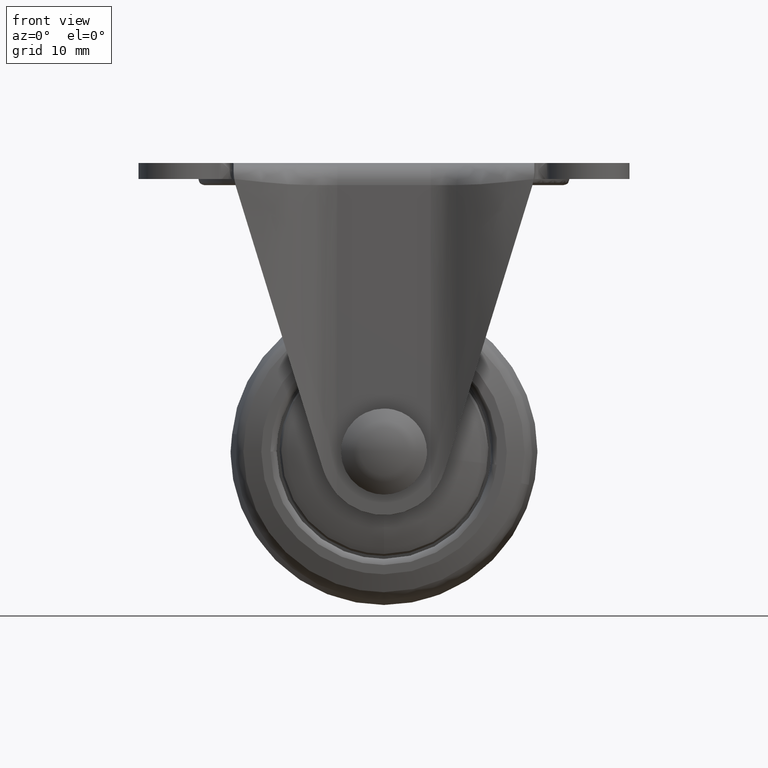
[diagram: clean part render]
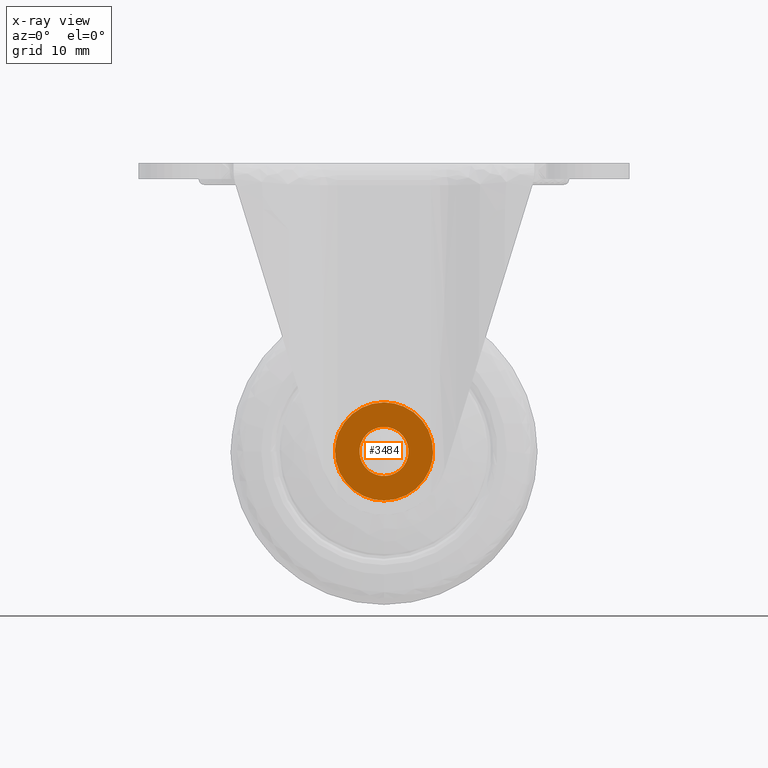
[diagram: x-ray — body ghosted, one internal face saturated and labeled with its STEP entity id]
A machine part, front view, then the same camera in x-ray: the body is ghosted and one INTERNAL B-rep face — a face not visible from any outside direction — is saturated and labeled: STEP entity #3484.
In plain terms, the highlighted face is a freeform B-spline surface patch.
Its self-contained STEP definition (entity closure, byte-faithful):
#1264=CARTESIAN_POINT('',(-3.054222664501923,-15.500000000000000,-49.582968444618473));
#1265=VERTEX_POINT('',#1264);
#1271=CARTESIAN_POINT('',(0.0,-15.500000000000000,-50.999999999999801));
#1272=VERTEX_POINT('',#1271);
#1273=CARTESIAN_POINT('',(-3.054222664501923,-15.500000000000000,-49.582968444618473));
#1274=CARTESIAN_POINT('',(-2.808872730657842,-15.499999999999970,-49.873308524333453));
#1275=CARTESIAN_POINT('',(-2.384946206780501,-15.500000000000060,-50.249531823307947));
#1276=CARTESIAN_POINT('',(-1.674764381499701,-15.499999999999940,-50.652202042374853));
#1277=CARTESIAN_POINT('',(-0.941151759163506,-15.499999999999931,-50.922475361348049));
#1278=CARTESIAN_POINT('',(-0.343911854788892,-15.500000000000099,-51.000105038213533));
#1279=CARTESIAN_POINT('',(0.0,-15.500000000000000,-50.999999999999801));
#1280=B_SPLINE_CURVE_WITH_KNOTS('',3,(#1273,#1274,#1275,#1276,#1277,#1278,#1279),.UNSPECIFIED.,.F.,.U.,(4,1,1,1,4),(0.000000059400376,1.140316804529790,1.683345092141266,2.443518461234145,3.475233123309955),.UNSPECIFIED.);
#1281=EDGE_CURVE('',#1265,#1272,#1280,.T.);
#1283=CARTESIAN_POINT('',(3.999999999999667,-15.500000000000000,-46.999998950303286));
#1284=VERTEX_POINT('',#1283);
#1285=CARTESIAN_POINT('',(0.0,-15.500000000000000,-50.999999999999801));
#1286=CARTESIAN_POINT('',(0.392721412746728,-15.500000000000011,-51.000185626690779));
#1287=CARTESIAN_POINT('',(1.047109512581690,-15.499999999999989,-50.902793225111743));
#1288=CARTESIAN_POINT('',(1.867365633119157,-15.500000000000041,-50.563005816825651));
#1289=CARTESIAN_POINT('',(2.500577606205961,-15.499999999999970,-50.151007793172333));
#1290=CARTESIAN_POINT('',(3.143763246352294,-15.500000000000011,-49.538935033749773));
#1291=CARTESIAN_POINT('',(3.656962279054536,-15.500000000000000,-48.728417136200328));
#1292=CARTESIAN_POINT('',(3.945198167623783,-15.500000000000110,-47.818105685787998));
#1293=CARTESIAN_POINT('',(4.000029753250794,-15.499999999999810,-47.261799231167018));
#1294=CARTESIAN_POINT('',(3.999999999999667,-15.500000000000000,-46.999998950303286));
#1295=B_SPLINE_CURVE_WITH_KNOTS('',3,(#1285,#1286,#1287,#1288,#1289,#1290,#1291,#1292,#1293,#1294),.UNSPECIFIED.,.F.,.U.,(4,1,1,1,1,1,1,4),(0.000000077338700,1.178124485163649,1.963550642275110,2.650800025444271,3.436193255035343,4.614330261092524,5.497934261530642,6.283343568979000),.UNSPECIFIED.);
#1296=EDGE_CURVE('',#1272,#1284,#1295,.T.);
#1298=CARTESIAN_POINT('',(0.0,-15.500000000000000,-43.000000000000199));
#1299=VERTEX_POINT('',#1298);
#1300=CARTESIAN_POINT('',(3.999999999999667,-15.500000000000000,-46.999998950303286));
#1301=CARTESIAN_POINT('',(4.000036588051216,-15.500000000000000,-46.672761661433853));
#1302=CARTESIAN_POINT('',(3.907297759796412,-15.500000000000011,-45.920023266574987));
#1303=CARTESIAN_POINT('',(3.502522396443434,-15.500000000000000,-44.975755563018438));
#1304=CARTESIAN_POINT('',(2.875198745765913,-15.500000000000020,-44.172205750381778));
#1305=CARTESIAN_POINT('',(2.085192558420630,-15.500000000000011,-43.523564234161803));
#1306=CARTESIAN_POINT('',(1.079959608904789,-15.500000000000020,-43.092719026859889));
#1307=CARTESIAN_POINT('',(0.327238564860059,-15.499999999999959,-42.999958412808120));
#1308=CARTESIAN_POINT('',(0.0,-15.500000000000000,-43.000000000000199));
#1309=B_SPLINE_CURVE_WITH_KNOTS('',3,(#1300,#1301,#1302,#1303,#1304,#1305,#1306,#1307,#1308),.UNSPECIFIED.,.F.,.U.,(4,1,1,1,1,1,4),(0.000000078774876,0.981769314587543,2.258086981098695,3.043499914183089,4.025259061888916,5.301575811805244,6.283342385696691),.UNSPECIFIED.);
#1310=EDGE_CURVE('',#1284,#1299,#1309,.T.);
#1312=CARTESIAN_POINT('',(-2.753418017730842,-15.500000000000000,-44.098502606736083));
#1313=VERTEX_POINT('',#1312);
#1314=CARTESIAN_POINT('',(0.0,-15.500000000000000,-43.000000000000199));
#1315=CARTESIAN_POINT('',(-0.474586353921024,-15.499999999999989,-42.999593902276352));
#1316=CARTESIAN_POINT('',(-1.138606459418413,-15.500000000000030,-43.119646665295647));
#1317=CARTESIAN_POINT('',(-2.062325108466624,-15.499999999999989,-43.540079785881183));
#1318=CARTESIAN_POINT('',(-2.501065194046824,-15.500000000000000,-43.858887503475323));
#1319=CARTESIAN_POINT('',(-2.753418017730842,-15.500000000000000,-44.098502606736083));
#1320=B_SPLINE_CURVE_WITH_KNOTS('',3,(#1314,#1315,#1316,#1317,#1318,#1319),.UNSPECIFIED.,.F.,.U.,(4,1,1,4),(0.000000020148860,1.423567905777823,1.992994109556138,3.036943866576336),.UNSPECIFIED.);
#1321=EDGE_CURVE('',#1299,#1313,#1320,.T.);
#1406=CARTESIAN_POINT('',(-3.999999999999667,-15.500000000000000,-47.000001049696692));
#1407=VERTEX_POINT('',#1406);
#1408=CARTESIAN_POINT('',(-2.753418017730842,-15.500000000000000,-44.098502606736083));
#1409=CARTESIAN_POINT('',(-3.072497551717309,-15.499999999999970,-44.400943147544439));
#1410=CARTESIAN_POINT('',(-3.526549343537438,-15.500000000000060,-45.002988113588032));
#1411=CARTESIAN_POINT('',(-3.918009135861313,-15.499999999999931,-46.019391745651248));
#1412=CARTESIAN_POINT('',(-4.000101551506419,-15.500000000000011,-46.661831595671941));
#1413=CARTESIAN_POINT('',(-3.999999999999667,-15.500000000000000,-47.000001049696692));
#1414=B_SPLINE_CURVE_WITH_KNOTS('',3,(#1408,#1409,#1410,#1411,#1412,#1413),.UNSPECIFIED.,.F.,.U.,(4,1,1,4),(0.000000047715371,1.318834840130054,2.231848859596768,3.246335246064783),.UNSPECIFIED.);
#1415=EDGE_CURVE('',#1313,#1407,#1414,.T.);
#1417=CARTESIAN_POINT('',(-3.999999999999667,-15.500000000000000,-47.000001049696692));
#1418=CARTESIAN_POINT('',(-4.000267955251509,-15.500000000000000,-47.438782161926852));
#1419=CARTESIAN_POINT('',(-3.844391913676216,-15.500000000000030,-48.374586625704389));
#1420=CARTESIAN_POINT('',(-3.375684825996563,-15.499999999999989,-49.203529420811307));
#1421=CARTESIAN_POINT('',(-3.054222664501923,-15.500000000000000,-49.582968444618473));
#1422=B_SPLINE_CURVE_WITH_KNOTS('',3,(#1417,#1418,#1419,#1420,#1421),.UNSPECIFIED.,.F.,.U.,(4,1,4),(0.000000040103199,1.316276784391391,2.808034314257867),.UNSPECIFIED.);
#1423=EDGE_CURVE('',#1407,#1265,#1422,.T.);
#2739=CARTESIAN_POINT('',(-7.997473516011954,-15.500000000000000,-46.798959236341751));
#2740=VERTEX_POINT('',#2739);
#2741=CARTESIAN_POINT('',(0.0,-15.500000000000000,-54.999999999999801));
#2742=VERTEX_POINT('',#2741);
#2743=CARTESIAN_POINT('',(-7.997473516011954,-15.500000000000000,-46.798959236341751));
#2744=CARTESIAN_POINT('',(-8.019695063911716,-15.499999999999989,-47.663206186710767));
#2745=CARTESIAN_POINT('',(-7.825710749365584,-15.500000000000030,-49.064593151554043));
#2746=CARTESIAN_POINT('',(-7.073040305327221,-15.499999999999989,-50.850573144946019));
#2747=CARTESIAN_POINT('',(-6.226121280537191,-15.500000000000000,-52.092979447914963));
#2748=CARTESIAN_POINT('',(-5.054343481277877,-15.500000000000050,-53.279986135274143));
#2749=CARTESIAN_POINT('',(-3.651630182532761,-15.499999999999821,-54.198455323193492));
#2750=CARTESIAN_POINT('',(-1.861841148172300,-15.500000000000121,-54.849888430366249));
#2751=CARTESIAN_POINT('',(-0.664974067728553,-15.499999999999950,-55.000163369121843));
#2752=CARTESIAN_POINT('',(0.0,-15.500000000000000,-54.999999999999801));
#2753=B_SPLINE_CURVE_WITH_KNOTS('',3,(#2743,#2744,#2745,#2746,#2747,#2748,#2749,#2750,#2751,#2752),.UNSPECIFIED.,.F.,.U.,(4,1,1,1,1,1,1,4),(0.000000151659229,2.593390843916556,4.189343497604911,5.785327061402748,7.081960859535242,9.176647628801142,10.772614148477540,12.767515238875051),.UNSPECIFIED.);
#2754=EDGE_CURVE('',#2740,#2742,#2753,.T.);
#2808=CARTESIAN_POINT('',(7.997473515355779,-15.500000000000000,-47.201040763628860));
#2809=VERTEX_POINT('',#2808);
#2820=CARTESIAN_POINT('',(0.0,-15.500000000000000,-54.999999999999801));
#2821=CARTESIAN_POINT('',(0.676233997616960,-15.500000000000011,-55.000184801906869));
#2822=CARTESIAN_POINT('',(1.899804500780552,-15.499999999999970,-54.843912430510457));
#2823=CARTESIAN_POINT('',(3.447068211517668,-15.500000000000050,-54.268120814820051));
#2824=CARTESIAN_POINT('',(4.834557136957445,-15.500000000000020,-53.441475072894050));
#2825=CARTESIAN_POINT('',(5.891729522686699,-15.499999999999970,-52.482751656599149));
#2826=CARTESIAN_POINT('',(6.825514179774698,-15.500000000000030,-51.246698116392587));
#2827=CARTESIAN_POINT('',(7.406205630759227,-15.499999999999970,-50.125708326581403));
#2828=CARTESIAN_POINT('',(7.857530744634930,-15.500000000000091,-48.711414763874430));
#2829=CARTESIAN_POINT('',(7.982995352611876,-15.499999999999879,-47.780482322625581));
#2830=CARTESIAN_POINT('',(7.997473515355779,-15.500000000000000,-47.201040763628860));
#2831=B_SPLINE_CURVE_WITH_KNOTS('',3,(#2820,#2821,#2822,#2823,#2824,#2825,#2826,#2827,#2828,#2829,#2830),.UNSPECIFIED.,.F.,.U.,(4,1,1,1,1,1,1,1,4),(0.000000151176543,2.028675368471005,3.670975336565874,4.926841507783829,6.858906324236911,7.921547412305952,9.563852604650961,10.626528373264099,12.365383809261820),.UNSPECIFIED.);
#2832=EDGE_CURVE('',#2742,#2809,#2831,.T.);
#2860=CARTESIAN_POINT('',(0.0,-15.500000000000000,-39.000000000000199));
#2861=VERTEX_POINT('',#2860);
#2862=CARTESIAN_POINT('',(0.0,-15.500000000000000,-39.000000000000199));
#2863=CARTESIAN_POINT('',(-0.708449580882783,-15.499999999999980,-38.999757134645520));
#2864=CARTESIAN_POINT('',(-1.931969829192351,-15.500000000000069,-39.163668411352283));
#2865=CARTESIAN_POINT('',(-3.656394116987559,-15.499999999999950,-39.817133929449291));
#2866=CARTESIAN_POINT('',(-4.881530030882610,-15.499999999999931,-40.608670062002012));
#2867=CARTESIAN_POINT('',(-5.945001068943544,-15.499999999999989,-41.596856151793432));
#2868=CARTESIAN_POINT('',(-6.883557441564776,-15.500000000000160,-42.793170175842128));
#2869=CARTESIAN_POINT('',(-7.730105287216943,-15.499999999999661,-44.583231948349670));
#2870=CARTESIAN_POINT('',(-7.978354898917008,-15.500000000000160,-46.026334736179130));
#2871=CARTESIAN_POINT('',(-7.997473516011954,-15.500000000000000,-46.798959236341751));
#2872=B_SPLINE_CURVE_WITH_KNOTS('',3,(#2862,#2863,#2864,#2865,#2866,#2867,#2868,#2869,#2870,#2871),.UNSPECIFIED.,.F.,.U.,(4,1,1,1,1,1,1,4),(0.000000151188878,2.125291892479588,3.670975336662236,5.506475886402698,6.472485562539221,8.018165680915185,10.046889691062971,12.365383809558541),.UNSPECIFIED.);
#2873=EDGE_CURVE('',#2861,#2740,#2872,.T.);
#2875=CARTESIAN_POINT('',(7.997473515355779,-15.500000000000000,-47.201040763628860));
#2876=CARTESIAN_POINT('',(8.010911666234176,-15.499999999999989,-46.669239541590677));
#2877=CARTESIAN_POINT('',(7.941024048998462,-15.500000000000020,-45.736271357128842));
#2878=CARTESIAN_POINT('',(7.538351034615330,-15.500000000000011,-44.152887109750338));
#2879=CARTESIAN_POINT('',(6.816380990865254,-15.499999999999959,-42.676852599812150));
#2880=CARTESIAN_POINT('',(5.821973732635501,-15.500000000000000,-41.461282947913240));
#2881=CARTESIAN_POINT('',(4.847911920262908,-15.500000000000080,-40.601542888111268));
#2882=CARTESIAN_POINT('',(3.787462199443963,-15.499999999999970,-39.907084174298816));
#2883=CARTESIAN_POINT('',(2.160926717127250,-15.500000000000011,-39.209214185488413));
#2884=CARTESIAN_POINT('',(0.831271323473329,-15.500000000000041,-38.999573503570453));
#2885=CARTESIAN_POINT('',(0.0,-15.500000000000000,-39.000000000000199));
#2886=B_SPLINE_CURVE_WITH_KNOTS('',3,(#2875,#2876,#2877,#2878,#2879,#2880,#2881,#2882,#2883,#2884,#2885),.UNSPECIFIED.,.F.,.U.,(4,1,1,1,1,1,1,1,4),(0.000000151661398,1.595910964197175,2.792893318894734,4.887567189599410,6.483460077432662,7.480962414184305,8.777653405385255,10.273861757825900,12.767515238672360),.UNSPECIFIED.);
#2887=EDGE_CURVE('',#2809,#2861,#2886,.T.);
#3465=CARTESIAN_POINT('',(-8.796421389525699,-15.500000000000000,-55.799199968988681));
#3466=CARTESIAN_POINT('',(-8.796421389525699,-15.500000000000000,-38.200799601857881));
#3467=CARTESIAN_POINT('',(8.796421531875494,-15.500000000000000,-55.799199968988681));
#3468=CARTESIAN_POINT('',(8.796421531875494,-15.500000000000000,-38.200799601857881));
#3469=B_SPLINE_SURFACE_WITH_KNOTS('',1,1,((#3465,#3467),(#3466,#3468)),.UNSPECIFIED.,.F.,.F.,.U.,(2,2),(2,2),(0.0,17.598400367130800),(0.0,17.592842921401189),.UNSPECIFIED.);
#3470=ORIENTED_EDGE('',*,*,#2832,.T.);
#3471=ORIENTED_EDGE('',*,*,#2887,.T.);
#3472=ORIENTED_EDGE('',*,*,#2873,.T.);
#3473=ORIENTED_EDGE('',*,*,#2754,.T.);
#3474=EDGE_LOOP('',(#3470,#3471,#3472,#3473));
#3475=FACE_OUTER_BOUND('',#3474,.T.);
#3476=ORIENTED_EDGE('',*,*,#1296,.F.);
#3477=ORIENTED_EDGE('',*,*,#1281,.F.);
#3478=ORIENTED_EDGE('',*,*,#1423,.F.);
#3479=ORIENTED_EDGE('',*,*,#1415,.F.);
#3480=ORIENTED_EDGE('',*,*,#1321,.F.);
#3481=ORIENTED_EDGE('',*,*,#1310,.F.);
#3482=EDGE_LOOP('',(#3476,#3477,#3478,#3479,#3480,#3481));
#3483=FACE_BOUND('',#3482,.T.);
#3484=ADVANCED_FACE('',(#3475,#3483),#3469,.F.);